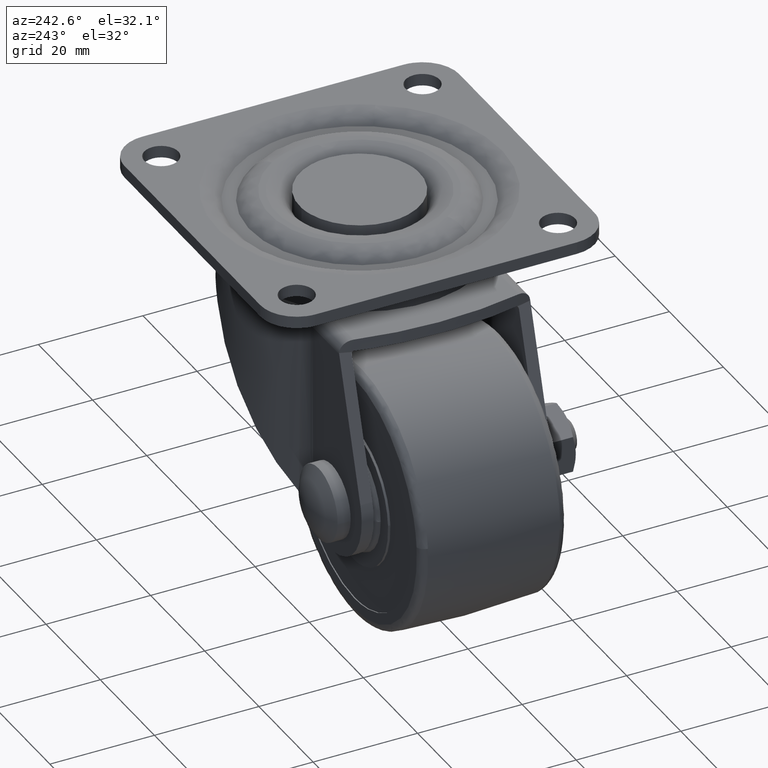
[diagram: clean part render]
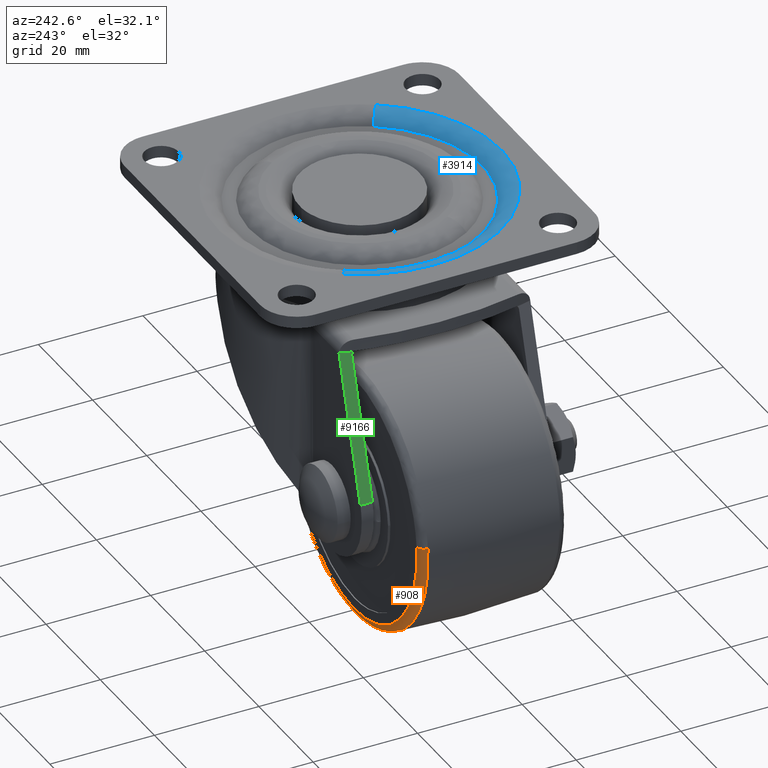
[diagram: same view with three faces highlighted in distinct colors, each labeled with its STEP entity id]
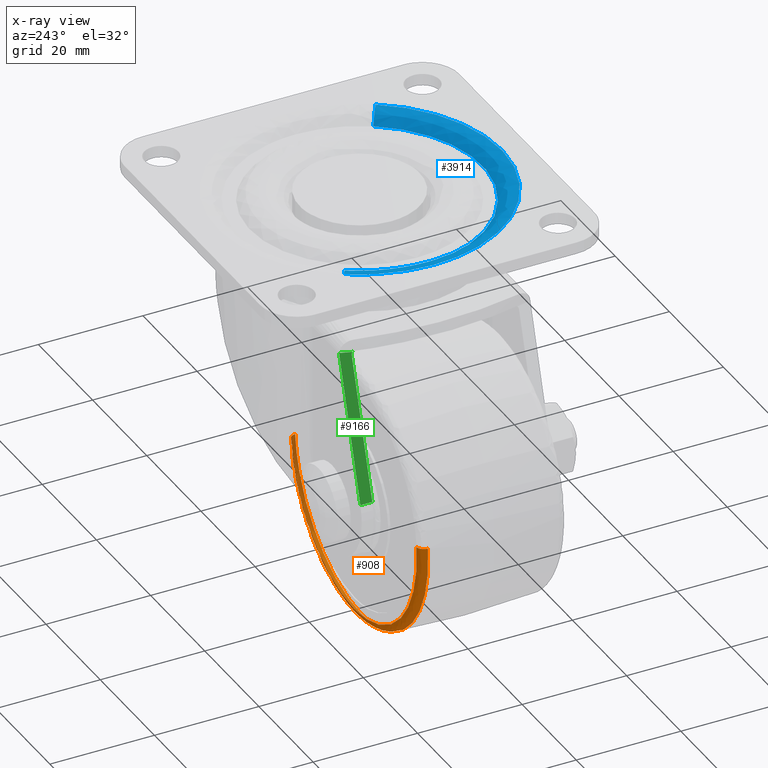
[diagram: x-ray of the same camera — body ghosted, the three highlighted faces saturated]
A machine part, auxiliary view with three faces highlighted in distinct colors.
The next image is the same camera in x-ray (body ghosted, the three faces saturated) — at least one of them is partly hidden behind the body in this view.
Their STEP definitions:

[orange] entity #908 — the highlighted face is a freeform B-spline surface patch.
#436=CARTESIAN_POINT('',(-25.0,12.594464063943599,-67.603054773573049));
#437=VERTEX_POINT('',#436);
#451=CARTESIAN_POINT('',(-0.492070076349826,12.594464053116550,-45.161407816219281));
#452=VERTEX_POINT('',#451);
#453=CARTESIAN_POINT('',(-25.0,12.594464063943599,-67.603054773573049));
#454=CARTESIAN_POINT('',(-2.471247857520020,12.594464058547842,-67.603054765866929));
#455=CARTESIAN_POINT('',(-0.492070076349826,12.594464053116546,-45.161407816219281));
#463=(BOUNDED_CURVE()B_SPLINE_CURVE(2,(#453,#454,#455),.UNSPECIFIED.,.F.,.U.)B_SPLINE_CURVE_WITH_KNOTS((3,3),(0.0,0.234718454640151),.UNSPECIFIED.)CURVE()GEOMETRIC_REPRESENTATION_ITEM()RATIONAL_B_SPLINE_CURVE((1.0,0.725010225222107,0.966381850265897))REPRESENTATION_ITEM(''));
#464=EDGE_CURVE('',#437,#452,#463,.T.);
#528=CARTESIAN_POINT('',(-49.507929923650600,12.594464053109700,-40.838592183780683));
#529=VERTEX_POINT('',#528);
#543=CARTESIAN_POINT('',(-49.507929923650600,12.594464053109705,-40.838592183780676));
#544=CARTESIAN_POINT('',(-49.603054957302028,12.594464053328856,-41.917202840677078));
#545=CARTESIAN_POINT('',(-49.603054961147627,12.594464053568050,-43.000000014760083));
#546=CARTESIAN_POINT('',(-49.603055048526400,12.594464059002760,-67.603054780629478));
#547=CARTESIAN_POINT('',(-25.0,12.594464063943599,-67.603054773573049));
#555=(BOUNDED_CURVE()B_SPLINE_CURVE(2,(#543,#544,#545,#546,#547),.UNSPECIFIED.,.F.,.U.)B_SPLINE_CURVE_WITH_KNOTS((3,2,3),(0.734718454640185,0.750000000000000,1.0),.UNSPECIFIED.)CURVE()GEOMETRIC_REPRESENTATION_ITEM()RATIONAL_B_SPLINE_CURVE((0.966381850265966,0.982096555964480,1.0,0.707106781186548,1.0))REPRESENTATION_ITEM(''));
#556=EDGE_CURVE('',#529,#437,#555,.T.);
#784=CARTESIAN_POINT('',(-1.983304943742823,14.000000000000121,-45.029892559580972));
#785=VERTEX_POINT('',#784);
#803=CARTESIAN_POINT('',(-48.016695056257177,14.000000000000110,-40.970107440419042));
#804=VERTEX_POINT('',#803);
#818=CARTESIAN_POINT('',(-48.016695056257177,14.000000000000119,-40.970107440419035));
#819=CARTESIAN_POINT('',(-49.419581618323726,14.000000200737158,-40.846383813509746));
#820=CARTESIAN_POINT('',(-49.507929923650600,12.594464053109700,-40.838592183780676));
#828=(BOUNDED_CURVE()B_SPLINE_CURVE(2,(#818,#819,#820),.UNSPECIFIED.,.F.,.U.)B_SPLINE_CURVE_WITH_KNOTS((3,3),(-1.714651638577928,-0.272304391272975),.UNSPECIFIED.)CURVE()GEOMETRIC_REPRESENTATION_ITEM()RATIONAL_B_SPLINE_CURVE((0.886705742641106,0.648023099249948,0.891062227825548))REPRESENTATION_ITEM(''));
#829=EDGE_CURVE('',#804,#529,#828,.T.);
#833=CARTESIAN_POINT('',(-1.983304943742822,14.000000000000115,-45.029892559580972));
#834=CARTESIAN_POINT('',(-0.580418381682684,14.000000200737160,-45.153616186489685));
#835=CARTESIAN_POINT('',(-0.492070076349826,12.594464053116548,-45.161407816219281));
#843=(BOUNDED_CURVE()B_SPLINE_CURVE(2,(#833,#834,#835),.UNSPECIFIED.,.F.,.U.)B_SPLINE_CURVE_WITH_KNOTS((3,3),(-1.714651638577928,-0.272304391277806),.UNSPECIFIED.)CURVE()GEOMETRIC_REPRESENTATION_ITEM()RATIONAL_B_SPLINE_CURVE((0.886705742641106,0.648023099250748,0.891062227823920))REPRESENTATION_ITEM(''));
#844=EDGE_CURVE('',#785,#452,#843,.T.);
#849=CARTESIAN_POINT('',(-47.915746102647283,13.996572752940152,-40.979010349121516));
#850=CARTESIAN_POINT('',(-49.936735753525767,13.996572752940150,-63.894756451768799));
#851=CARTESIAN_POINT('',(-27.020989650878494,13.996572752940152,-65.915746102647276));
#852=CARTESIAN_POINT('',(-4.105243548231212,13.996572752940150,-67.936735753525767));
#853=CARTESIAN_POINT('',(-2.084253897352725,13.996572752940152,-45.020989650878491));
#854=CARTESIAN_POINT('',(-49.517709610216492,14.105471356524177,-40.837729691909637));
#855=CARTESIAN_POINT('',(-51.679979918306834,14.105471356524175,-65.355439302126115));
#856=CARTESIAN_POINT('',(-27.162270308090356,14.105471356524177,-67.517709610216471));
#857=CARTESIAN_POINT('',(-2.644560697873885,14.105471356524175,-69.679979918306856));
#858=CARTESIAN_POINT('',(-0.482290389783511,14.105471356524177,-45.162270308090356));
#859=CARTESIAN_POINT('',(-49.510882168670051,12.493621725499851,-40.838331818877066));
#860=CARTESIAN_POINT('',(-51.672550349792978,12.493621725499853,-65.349213987547131));
#861=CARTESIAN_POINT('',(-27.161668181122927,12.493621725499851,-67.510882168670051));
#862=CARTESIAN_POINT('',(-2.650786012452881,12.493621725499853,-69.672550349792971));
#863=CARTESIAN_POINT('',(-0.489117831329953,12.493621725499851,-45.161668181122927));
#871=(BOUNDED_SURFACE()B_SPLINE_SURFACE(2,2,((#849,#854,#859),(#850,#855,#860),(#851,#856,#861),(#852,#857,#862),(#853,#858,#863)),.UNSPECIFIED.,.F.,.F.,.U.)B_SPLINE_SURFACE_WITH_KNOTS((3,2,3),(3,3),(0.0,40.768586570329283,81.537173140658567),(0.0,2.612528206066106),.UNSPECIFIED.)GEOMETRIC_REPRESENTATION_ITEM()RATIONAL_B_SPLINE_SURFACE(((0.911752015200630,0.622759209618805,0.916543734886684),(0.644706032708866,0.440357260167832,0.648094290192420),(0.911752015200630,0.622759209618805,0.916543734886684),(0.644706032708866,0.440357260167832,0.648094290192420),(0.911752015200630,0.622759209618805,0.916543734886684)))REPRESENTATION_ITEM('')SURFACE());
#872=CARTESIAN_POINT('',(-25.0,14.000000000000110,-66.106031999999999));
#873=VERTEX_POINT('',#872);
#874=CARTESIAN_POINT('',(-25.0,14.000000000000110,-66.106031999999999));
#875=CARTESIAN_POINT('',(-3.842055672883411,14.000000000000108,-66.106032000314755));
#876=CARTESIAN_POINT('',(-1.983304943742823,14.000000000000117,-45.029892559580972));
#884=(BOUNDED_CURVE()B_SPLINE_CURVE(2,(#874,#875,#876),.UNSPECIFIED.,.F.,.U.)B_SPLINE_CURVE_WITH_KNOTS((3,3),(0.0,0.234718454854471),.UNSPECIFIED.)CURVE()GEOMETRIC_REPRESENTATION_ITEM()RATIONAL_B_SPLINE_CURVE((1.0,0.725010224971015,0.966381850706687))REPRESENTATION_ITEM(''));
#885=EDGE_CURVE('',#873,#785,#884,.T.);
#886=ORIENTED_EDGE('',*,*,#885,.T.);
#887=ORIENTED_EDGE('',*,*,#844,.T.);
#888=ORIENTED_EDGE('',*,*,#464,.F.);
#889=ORIENTED_EDGE('',*,*,#556,.F.);
#890=ORIENTED_EDGE('',*,*,#829,.F.);
#891=CARTESIAN_POINT('',(-48.016695056257177,14.000000000000115,-40.970107440419035));
#892=CARTESIAN_POINT('',(-48.106032006994383,14.000000000000119,-41.983087829949980));
#893=CARTESIAN_POINT('',(-48.106032006837303,14.000000000000110,-42.999999999397012));
#894=CARTESIAN_POINT('',(-48.106032003268190,14.000000000000110,-66.106031999711789));
#895=CARTESIAN_POINT('',(-25.0,14.000000000000110,-66.106031999999999));
#903=(BOUNDED_CURVE()B_SPLINE_CURVE(2,(#891,#892,#893,#894,#895),.UNSPECIFIED.,.F.,.U.)B_SPLINE_CURVE_WITH_KNOTS((3,2,3),(0.734718454854472,0.750000000000000,1.0),.UNSPECIFIED.)CURVE()GEOMETRIC_REPRESENTATION_ITEM()RATIONAL_B_SPLINE_CURVE((0.966381850706687,0.982096556215532,1.0,0.707106781186547,1.0))REPRESENTATION_ITEM(''));
#904=EDGE_CURVE('',#804,#873,#903,.T.);
#905=ORIENTED_EDGE('',*,*,#904,.T.);
#906=EDGE_LOOP('',(#886,#887,#888,#889,#890,#905));
#907=FACE_OUTER_BOUND('',#906,.T.);
#908=ADVANCED_FACE('',(#907),#871,.T.);

[blue] entity #3914 — the highlighted face is a freeform B-spline surface patch.
#3641=CARTESIAN_POINT('',(19.681908941130342,-12.840267148355149,-1.999999999742957));
#3642=VERTEX_POINT('',#3641);
#3643=CARTESIAN_POINT('',(-23.500000000000000,0.0,-2.000000000000093));
#3644=VERTEX_POINT('',#3643);
#3645=CARTESIAN_POINT('',(19.681908941130342,-12.840267148355149,-1.999999999742957));
#3646=CARTESIAN_POINT('',(19.039066216613261,-13.825767218217170,-1.999999999744893));
#3647=CARTESIAN_POINT('',(18.011208463970220,-15.168832704489260,-1.999999999748284));
#3648=CARTESIAN_POINT('',(16.225415581069001,-17.044675369907189,-1.999999999755049));
#3649=CARTESIAN_POINT('',(14.157758100998221,-18.857807535732508,-1.999999999763379));
#3650=CARTESIAN_POINT('',(11.617796551379049,-20.511664837870789,-1.999999999774600));
#3651=CARTESIAN_POINT('',(9.061984255843461,-21.720949778156839,-1.999999999786599));
#3652=CARTESIAN_POINT('',(6.809706281967566,-22.535095393407119,-1.999999999797705));
#3653=CARTESIAN_POINT('',(4.636845464766889,-23.076527074874178,-1.999999999808403));
#3654=CARTESIAN_POINT('',(2.073981205489848,-23.454905430031769,-1.999999999822277));
#3655=CARTESIAN_POINT('',(-0.479229802648318,-23.554339264213979,-1.999999999835798));
#3656=CARTESIAN_POINT('',(-3.649783485528942,-23.288260932060560,-1.999999999853595));
#3657=CARTESIAN_POINT('',(-6.683963654975612,-22.613157551269740,-1.999999999871315));
#3658=CARTESIAN_POINT('',(-9.697966040024905,-21.473048392016860,-1.999999999889648));
#3659=CARTESIAN_POINT('',(-12.163984297219450,-20.167803889137069,-1.999999999905273));
#3660=CARTESIAN_POINT('',(-14.365256009718699,-18.655487606308100,-1.999999999919737));
#3661=CARTESIAN_POINT('',(-16.421383918358949,-16.889604650922841,-1.999999999933982));
#3662=CARTESIAN_POINT('',(-18.597073219199679,-14.511845220775511,-1.999999999949592));
#3663=CARTESIAN_POINT('',(-20.438919587813139,-11.765846595266961,-1.999999999964239));
#3664=CARTESIAN_POINT('',(-21.861413687636521,-8.787593774448451,-1.999999999976819));
#3665=CARTESIAN_POINT('',(-22.715643628410259,-6.213662540722059,-1.999999999985710));
#3666=CARTESIAN_POINT('',(-23.339354492818511,-3.255275770429008,-1.999999999993884));
#3667=CARTESIAN_POINT('',(-23.500094187435099,-1.255058575285451,-1.999999999998112));
#3668=CARTESIAN_POINT('',(-23.500000000000000,0.0,-2.000000000000093));
#3669=B_SPLINE_CURVE_WITH_KNOTS('',3,(#3645,#3646,#3647,#3648,#3649,#3650,#3651,#3652,#3653,#3654,#3655,#3656,#3657,#3658,#3659,#3660,#3661,#3662,#3663,#3664,#3665,#3666,#3667,#3668),.UNSPECIFIED.,.F.,.U.,(4,1,1,1,1,1,1,1,1,1,1,1,1,1,1,1,1,1,1,1,1,4),(0.000000069475504,3.529874912401162,5.059492058034799,7.765741295603874,11.766268772707290,14.119526739840181,16.237470040025830,18.943717875165721,20.826322600401600,24.003166721646721,26.591701267591990,30.356915705277501,33.298486748038187,36.240062483369570,38.710980994275779,41.299567455095243,44.358800132170842,48.359333138085368,51.183243817552523,54.242490356242897,56.478083321649777,60.243243651758341),.UNSPECIFIED.);
#3670=EDGE_CURVE('',#3642,#3644,#3669,.T.);
#3687=CARTESIAN_POINT('',(-19.681908941130331,12.840267148355149,-1.999999999742957));
#3688=VERTEX_POINT('',#3687);
#3715=CARTESIAN_POINT('',(-23.500000000000000,0.0,-2.000000000000093));
#3716=CARTESIAN_POINT('',(-23.500000000071942,6.987793855953459,-1.999999999871526));
#3717=CARTESIAN_POINT('',(-19.681908941130335,12.840267148355148,-1.999999999742957));
#3725=(BOUNDED_CURVE()B_SPLINE_CURVE(2,(#3715,#3716,#3717),.UNSPECIFIED.,.F.,.U.)B_SPLINE_CURVE_WITH_KNOTS((3,3),(0.0,0.093601467029317),.UNSPECIFIED.)CURVE()GEOMETRIC_REPRESENTATION_ITEM()RATIONAL_B_SPLINE_CURVE((1.0,0.890339060144489,0.862793519059294))REPRESENTATION_ITEM(''));
#3726=EDGE_CURVE('',#3644,#3688,#3725,.T.);
#3815=CARTESIAN_POINT('',(19.587387326071987,-12.778602256375427,-2.177778589317673));
#3816=CARTESIAN_POINT('',(6.808785069696557,-32.365989582447405,-2.177778589317675));
#3817=CARTESIAN_POINT('',(-12.778602256375427,-19.587387326071987,-2.177778589317673));
#3818=CARTESIAN_POINT('',(-32.365989582447426,-6.808785069696545,-2.177778589317675));
#3819=CARTESIAN_POINT('',(-19.587387326071994,12.778602256375414,-2.177778589317673));
#3820=CARTESIAN_POINT('',(20.747138024575953,-13.535211223463634,0.120652189882761));
#3821=CARTESIAN_POINT('',(7.211926801112326,-34.282349248039580,0.120652189882761));
#3822=CARTESIAN_POINT('',(-13.535211223463634,-20.747138024575953,0.120652189882761));
#3823=CARTESIAN_POINT('',(-34.282349248039580,-7.211926801112312,0.120652189882761));
#3824=CARTESIAN_POINT('',(-20.747138024575968,13.535211223463621,0.120652189882761));
#3825=CARTESIAN_POINT('',(22.992039990343130,-14.999761285579888,-0.004931002402365));
#3826=CARTESIAN_POINT('',(7.992278704763237,-37.991801275923024,-0.004931002402365));
#3827=CARTESIAN_POINT('',(-14.999761285579888,-22.992039990343130,-0.004931002402365));
#3828=CARTESIAN_POINT('',(-37.991801275923024,-7.992278704763222,-0.004931002402365));
#3829=CARTESIAN_POINT('',(-22.992039990343130,14.999761285579877,-0.004931002402365));
#3837=(BOUNDED_SURFACE()B_SPLINE_SURFACE(2,2,((#3815,#3820,#3825),(#3816,#3821,#3826),(#3817,#3822,#3827),(#3818,#3823,#3828),(#3819,#3824,#3829)),.UNSPECIFIED.,.F.,.F.,.U.)B_SPLINE_SURFACE_WITH_KNOTS((3,2,3),(3,3),(0.0,45.484398540951489,90.968797081902977),(0.0,4.959283534288572),.UNSPECIFIED.)GEOMETRIC_REPRESENTATION_ITEM()RATIONAL_B_SPLINE_SURFACE(((0.923531344887134,0.793043540680917,0.923132209010213),(0.653035276608024,0.560766465391666,0.652753044922839),(0.923531344887134,0.793043540680917,0.923132209010213),(0.653035276608024,0.560766465391666,0.652753044922839),(0.923531344887134,0.793043540680917,0.923132209010213)))REPRESENTATION_ITEM('')SURFACE());
#3838=ORIENTED_EDGE('',*,*,#3670,.T.);
#3839=ORIENTED_EDGE('',*,*,#3726,.T.);
#3840=CARTESIAN_POINT('',(-22.815651917583200,14.884687591186140,-8.522812E-016));
#3841=VERTEX_POINT('',#3840);
#3842=CARTESIAN_POINT('',(-19.681908941130327,12.840267148355155,-1.999999999742957));
#3843=CARTESIAN_POINT('',(-20.801102861361809,13.570417306563828,-6.558497E-010));
#3844=CARTESIAN_POINT('',(-22.815651917583196,14.884687591186134,-8.522812E-016));
#3852=(BOUNDED_CURVE()B_SPLINE_CURVE(2,(#3842,#3843,#3844),.UNSPECIFIED.,.F.,.U.)B_SPLINE_CURVE_WITH_KNOTS((3,3),(-1.617245963020243,-0.384830415951990),.UNSPECIFIED.)CURVE()GEOMETRIC_REPRESENTATION_ITEM()RATIONAL_B_SPLINE_CURVE((0.912217013786676,0.804339750230295,0.911854121042049))REPRESENTATION_ITEM(''));
#3853=EDGE_CURVE('',#3688,#3841,#3852,.T.);
#3854=ORIENTED_EDGE('',*,*,#3853,.T.);
#3855=CARTESIAN_POINT('',(-27.241657386774001,0.0,0.0));
#3856=VERTEX_POINT('',#3855);
#3857=CARTESIAN_POINT('',(-27.241657386774001,0.0,0.0));
#3858=CARTESIAN_POINT('',(-27.241657386260183,8.100386642757956,-4.261406E-016));
#3859=CARTESIAN_POINT('',(-22.815651917583200,14.884687591186145,-8.522812E-016));
#3867=(BOUNDED_CURVE()B_SPLINE_CURVE(2,(#3857,#3858,#3859),.UNSPECIFIED.,.F.,.U.)B_SPLINE_CURVE_WITH_KNOTS((3,3),(0.0,0.093601467029614),.UNSPECIFIED.)CURVE()GEOMETRIC_REPRESENTATION_ITEM()RATIONAL_B_SPLINE_CURVE((1.0,0.890339060144140,0.862793519059119))REPRESENTATION_ITEM(''));
#3868=EDGE_CURVE('',#3856,#3841,#3867,.T.);
#3869=ORIENTED_EDGE('',*,*,#3868,.F.);
#3870=CARTESIAN_POINT('',(22.815651917583210,-14.884687591186131,-7.305267E-016));
#3871=VERTEX_POINT('',#3870);
#3872=CARTESIAN_POINT('',(22.815651917583210,-14.884687591186131,-7.305267E-016));
#3873=CARTESIAN_POINT('',(21.921473836661828,-16.255622269632688,-7.240033E-016));
#3874=CARTESIAN_POINT('',(20.167708254292180,-18.477110509688551,-7.093453E-016));
#3875=CARTESIAN_POINT('',(17.527683681939472,-20.923725761891991,-6.837018E-016));
#3876=CARTESIAN_POINT('',(15.227699141720390,-22.635264617561209,-6.596869E-016));
#3877=CARTESIAN_POINT('',(13.167199152127431,-23.890424019089789,-6.370635E-016));
#3878=CARTESIAN_POINT('',(10.431440802053141,-25.235750842860028,-6.057455E-016));
#3879=CARTESIAN_POINT('',(7.421294585294656,-26.298301066020400,-5.696210E-016));
#3880=CARTESIAN_POINT('',(3.586096827380413,-27.092314096703689,-5.213634E-016));
#3881=CARTESIAN_POINT('',(-0.373335725184461,-27.355970209846380,-4.693255E-016));
#3882=CARTESIAN_POINT('',(-4.324099114553206,-26.984384806978259,-4.148711E-016));
#3883=CARTESIAN_POINT('',(-7.692909588651690,-26.190387895406140,-3.665355E-016));
#3884=CARTESIAN_POINT('',(-10.438370074138380,-25.214276792365268,-3.258319E-016));
#3885=CARTESIAN_POINT('',(-12.945697363022671,-24.020834206090640,-2.874548E-016));
#3886=CARTESIAN_POINT('',(-15.788572644260690,-22.299921341433301,-2.424755E-016));
#3887=CARTESIAN_POINT('',(-18.562042710901888,-20.070524491737849,-1.963995E-016));
#3888=CARTESIAN_POINT('',(-21.042235356447840,-17.400272435882499,-1.524982E-016));
#3889=CARTESIAN_POINT('',(-22.868595976042670,-14.899913483699510,-1.180409E-016));
#3890=CARTESIAN_POINT('',(-24.597632875297212,-11.902711186287229,-8.290774E-017));
#3891=CARTESIAN_POINT('',(-25.840474648184639,-8.862237391571378,-5.412105E-017));
#3892=CARTESIAN_POINT('',(-26.660484443133761,-5.783739511230263,-3.085221E-017));
#3893=CARTESIAN_POINT('',(-27.124032158072310,-3.046175007171947,-1.372221E-017));
#3894=CARTESIAN_POINT('',(-27.241690879070909,-1.091167973817993,-4.350023E-018));
#3895=CARTESIAN_POINT('',(-27.241657386774001,0.0,0.0));
#3896=B_SPLINE_CURVE_WITH_KNOTS('',3,(#3872,#3873,#3874,#3875,#3876,#3877,#3878,#3879,#3880,#3881,#3882,#3883,#3884,#3885,#3886,#3887,#3888,#3889,#3890,#3891,#3892,#3893,#3894,#3895),.UNSPECIFIED.,.F.,.U.,(4,1,1,1,1,1,1,1,1,1,1,1,1,1,1,1,1,1,1,1,1,4),(0.000000055416237,4.910282948320941,8.456600339258053,10.775359753858149,13.503289116098561,15.685631214326341,19.913962097363349,23.051077622115489,27.415735458507740,31.780438801504619,34.917565481616478,37.781872166200699,40.509837047126616,43.237757784488977,47.738864590221127,51.148793627644253,54.149530352902900,57.013857607342487,61.514941757182591,63.970087515833832,66.561638237592220,69.835140570289653),.UNSPECIFIED.);
#3897=EDGE_CURVE('',#3871,#3856,#3896,.T.);
#3898=ORIENTED_EDGE('',*,*,#3897,.F.);
#3899=CARTESIAN_POINT('',(19.681908941130338,-12.840267148355142,-1.999999999742957));
#3900=CARTESIAN_POINT('',(20.801102861361816,-13.570417306563819,-6.558445E-010));
#3901=CARTESIAN_POINT('',(22.815651917583207,-14.884687591186140,-7.305267E-016));
#3909=(BOUNDED_CURVE()B_SPLINE_CURVE(2,(#3899,#3900,#3901),.UNSPECIFIED.,.F.,.U.)B_SPLINE_CURVE_WITH_KNOTS((3,3),(-1.617245963020242,-0.384830415951987),.UNSPECIFIED.)CURVE()GEOMETRIC_REPRESENTATION_ITEM()RATIONAL_B_SPLINE_CURVE((0.912217013786676,0.804339750230295,0.911854121042050))REPRESENTATION_ITEM(''));
#3910=EDGE_CURVE('',#3642,#3871,#3909,.T.);
#3911=ORIENTED_EDGE('',*,*,#3910,.F.);
#3912=EDGE_LOOP('',(#3838,#3839,#3854,#3869,#3898,#3911));
#3913=FACE_OUTER_BOUND('',#3912,.T.);
#3914=ADVANCED_FACE('',(#3913),#3837,.T.);

[green] entity #9166 — the highlighted face is a freeform B-spline surface patch.
#9092=CARTESIAN_POINT('',(-35.962674813255312,15.688916047676599,-39.556078832061722));
#9093=CARTESIAN_POINT('',(-27.299760312414520,15.688916047676599,-10.795204185444449));
#9094=CARTESIAN_POINT('',(-35.962674813255312,18.424222113751451,-39.556078832061722));
#9095=CARTESIAN_POINT('',(-27.299760312414520,18.424222113751451,-10.795204185444449));
#9096=B_SPLINE_SURFACE_WITH_KNOTS('',1,1,((#9092,#9094),(#9093,#9095)),.UNSPECIFIED.,.F.,.F.,.U.,(2,2),(2,2),(0.0,30.037210224774689),(0.0,2.735306066074848),.UNSPECIFIED.);
#9097=CARTESIAN_POINT('',(-27.818652147889949,15.813135094725050,-12.517924989604939));
#9098=VERTEX_POINT('',#9097);
#9099=CARTESIAN_POINT('',(-27.755911742406500,17.052615768201381,-12.309626854235860));
#9100=VERTEX_POINT('',#9099);
#9101=CARTESIAN_POINT('',(-27.818652147889949,15.813135094725050,-12.517924989604939));
#9102=CARTESIAN_POINT('',(-27.755911742406500,17.052615768201381,-12.309626854235860));
#9103=QUASI_UNIFORM_CURVE('',1,(#9101,#9102),.UNSPECIFIED.,.F.,.U.);
#9104=EDGE_CURVE('',#9098,#9100,#9103,.T.);
#9105=ORIENTED_EDGE('',*,*,#9104,.T.);
#9106=CARTESIAN_POINT('',(-27.693171336923051,18.292096441677700,-12.101328718866780));
#9107=VERTEX_POINT('',#9106);
#9108=CARTESIAN_POINT('',(-27.755911742406500,17.052615768201381,-12.309626854235860));
#9109=CARTESIAN_POINT('',(-27.734998273912019,17.465775992693491,-12.240194142446160));
#9110=CARTESIAN_POINT('',(-27.714084805417549,17.878936217185590,-12.170761430656430));
#9111=CARTESIAN_POINT('',(-27.693171336923069,18.292096441677689,-12.101328718866670));
#9112=B_SPLINE_CURVE_WITH_KNOTS('',3,(#9108,#9109,#9110,#9111),.UNSPECIFIED.,.F.,.U.,(4,4),(0.819219477568994,0.998854123476895),.UNSPECIFIED.);
#9113=EDGE_CURVE('',#9100,#9107,#9112,.T.);
#9114=ORIENTED_EDGE('',*,*,#9113,.T.);
#9115=CARTESIAN_POINT('',(-27.753012087365299,18.300003000000000,-12.299999999999860));
#9116=VERTEX_POINT('',#9115);
#9117=CARTESIAN_POINT('',(-27.693171336923079,18.292096441677678,-12.101328718866769));
#9118=CARTESIAN_POINT('',(-27.723044311244770,18.300002996684892,-12.200506988455409));
#9119=CARTESIAN_POINT('',(-27.753012062274980,18.300003000000000,-12.299999916699980));
#9127=(BOUNDED_CURVE()B_SPLINE_CURVE(2,(#9117,#9118,#9119),.UNSPECIFIED.,.F.,.U.)CURVE()GEOMETRIC_REPRESENTATION_ITEM()QUASI_UNIFORM_CURVE()RATIONAL_B_SPLINE_CURVE((1.0,0.999209032014707,1.0))REPRESENTATION_ITEM(''));
#9128=EDGE_CURVE('',#9107,#9116,#9127,.T.);
#9129=ORIENTED_EDGE('',*,*,#9128,.T.);
#9130=CARTESIAN_POINT('',(-35.569263999999997,18.300003000000000,-38.249955000000213));
#9131=VERTEX_POINT('',#9130);
#9132=CARTESIAN_POINT('',(-27.753012087365299,18.300003000000000,-12.299999999999860));
#9133=CARTESIAN_POINT('',(-35.569263999999997,18.300003000000000,-38.249955000000213));
#9134=QUASI_UNIFORM_CURVE('',1,(#9132,#9133),.UNSPECIFIED.,.F.,.U.);
#9135=EDGE_CURVE('',#9116,#9131,#9134,.T.);
#9136=ORIENTED_EDGE('',*,*,#9135,.T.);
#9137=CARTESIAN_POINT('',(-35.569263999999997,16.0,-38.249955000000213));
#9138=VERTEX_POINT('',#9137);
#9139=CARTESIAN_POINT('',(-35.569263999999997,16.0,-38.249955000000213));
#9140=CARTESIAN_POINT('',(-35.569263999999997,18.300003000000000,-38.249955000000213));
#9141=QUASI_UNIFORM_CURVE('',1,(#9139,#9140),.UNSPECIFIED.,.F.,.U.);
#9142=EDGE_CURVE('',#9138,#9131,#9141,.T.);
#9143=ORIENTED_EDGE('',*,*,#9142,.F.);
#9144=CARTESIAN_POINT('',(-27.993975955322249,16.0,-13.100000000000000));
#9145=VERTEX_POINT('',#9144);
#9146=CARTESIAN_POINT('',(-27.993975955322249,16.0,-13.100000000000000));
#9147=CARTESIAN_POINT('',(-35.569263999999997,16.0,-38.249955000000213));
#9148=QUASI_UNIFORM_CURVE('',1,(#9146,#9147),.UNSPECIFIED.,.F.,.U.);
#9149=EDGE_CURVE('',#9145,#9138,#9148,.T.);
#9150=ORIENTED_EDGE('',*,*,#9149,.F.);
#9151=CARTESIAN_POINT('',(-27.993975955322298,16.0,-13.099999999999991));
#9152=CARTESIAN_POINT('',(-27.897279460978105,16.000000000000007,-12.778967655477768));
#9153=CARTESIAN_POINT('',(-27.818652147889971,15.813135094725050,-12.517924989604881));
#9161=(BOUNDED_CURVE()B_SPLINE_CURVE(2,(#9151,#9152,#9153),.UNSPECIFIED.,.F.,.U.)CURVE()GEOMETRIC_REPRESENTATION_ITEM()QUASI_UNIFORM_CURVE()RATIONAL_B_SPLINE_CURVE((1.0,0.952138407671096,1.0))REPRESENTATION_ITEM(''));
#9162=EDGE_CURVE('',#9145,#9098,#9161,.T.);
#9163=ORIENTED_EDGE('',*,*,#9162,.T.);
#9164=EDGE_LOOP('',(#9105,#9114,#9129,#9136,#9143,#9150,#9163));
#9165=FACE_OUTER_BOUND('',#9164,.T.);
#9166=ADVANCED_FACE('',(#9165),#9096,.T.);